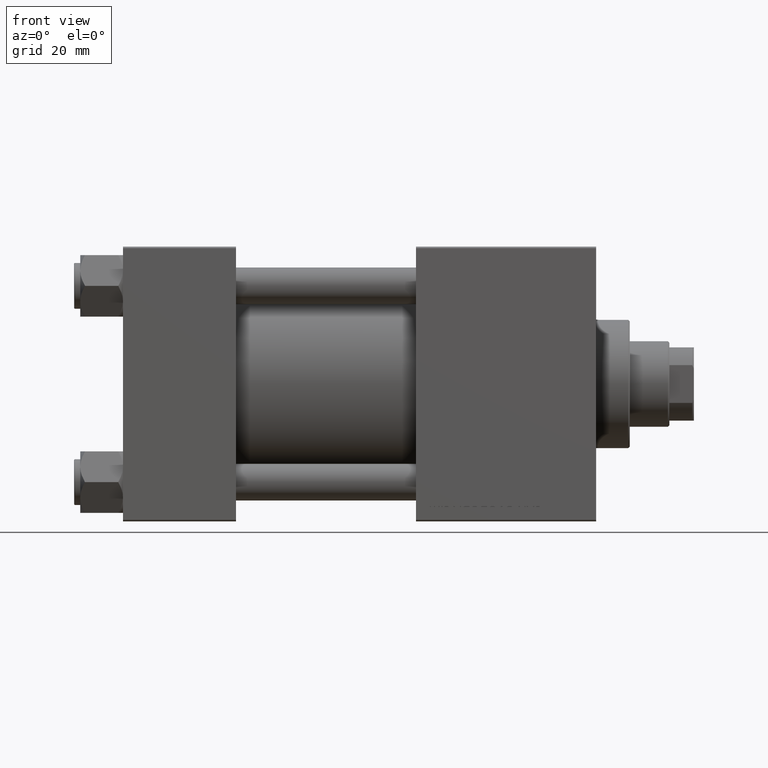
[diagram: clean part render]
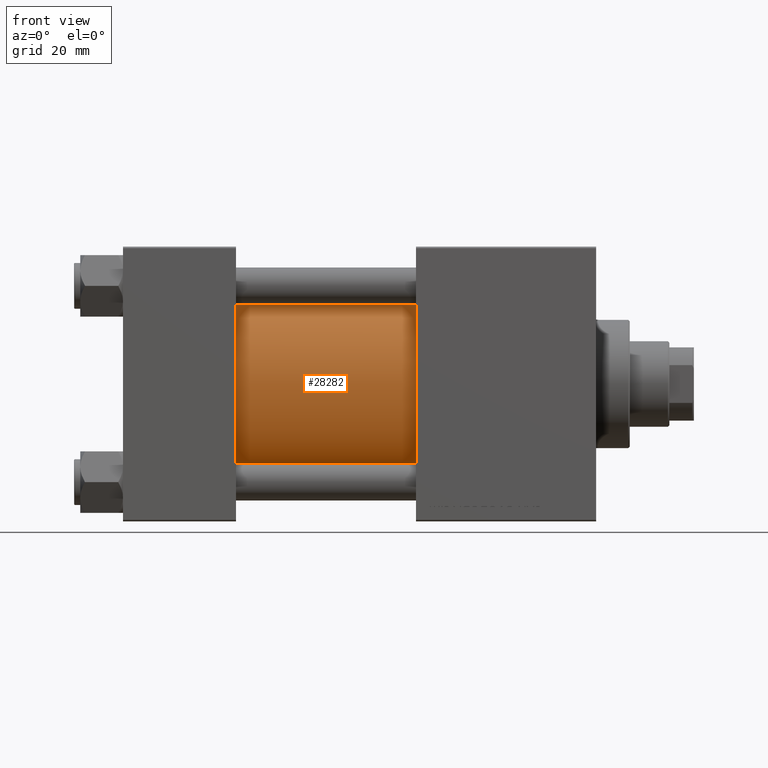
[diagram: same view with one face highlighted and labeled with its STEP entity id]
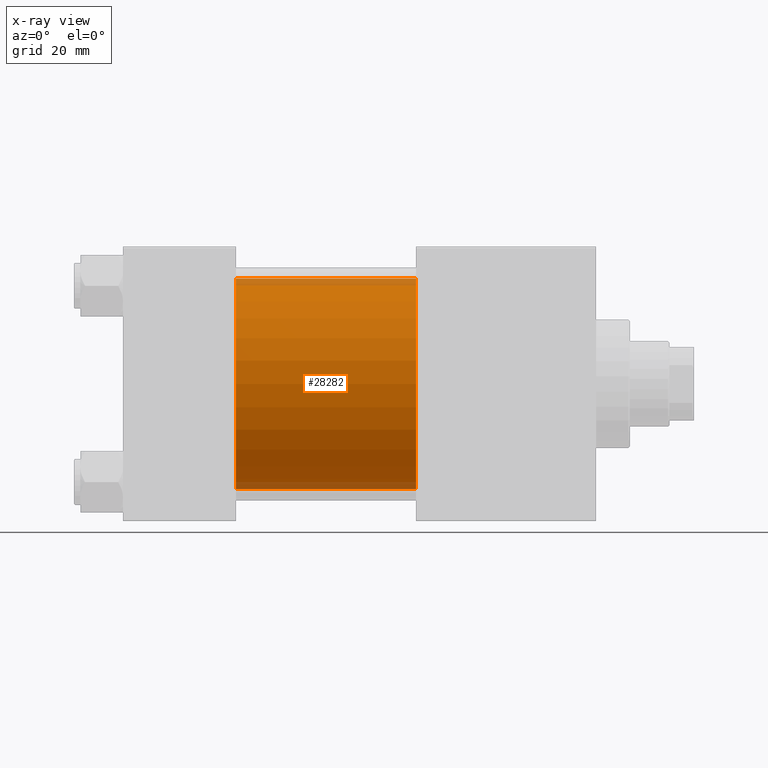
[diagram: x-ray of the same camera — body ghosted, the highlighted face saturated]
A machine part, front view. The second image highlights one B-rep face of the part: STEP entity #28282.
The next image is the same camera in x-ray: the body ghosted, the highlighted face saturated — about 7% of this face is hidden behind the body in this view.
In plain terms, the highlighted cylindrical surface (partial cylindrical patch) has radius 34.5 mm, axis along (-1, -0, -0).
Its self-contained STEP definition (entity closure, byte-faithful):
#181 = CIRCLE ( 'NONE', #28547, 34.50000000000000000 ) ;
#4275 = CARTESIAN_POINT ( 'NONE',  ( 37.00000000000000000, -2.602085213965210642E-15, 0.000000000000000000 ) ) ;
#6782 = FACE_OUTER_BOUND ( 'NONE', #41993, .T. ) ;
#7364 = ORIENTED_EDGE ( 'NONE', *, *, #33467, .T. ) ;
#7755 = AXIS2_PLACEMENT_3D ( 'NONE', #4275, #39036, #38778 ) ;
#8769 = CARTESIAN_POINT ( 'NONE',  ( 96.00000000000000000, -2.602085213965210642E-15, 0.000000000000000000 ) ) ;
#12746 = EDGE_CURVE ( 'NONE', #16697, #15611, #181, .T. ) ;
#15611 = VERTEX_POINT ( 'NONE', #27593 ) ;
#16697 = VERTEX_POINT ( 'NONE', #44147 ) ;
#17651 = EDGE_CURVE ( 'NONE', #45171, #49192, #45042, .T. ) ;
#20441 = DIRECTION ( 'NONE',  ( 0.000000000000000000, 0.000000000000000000, -1.000000000000000000 ) ) ;
#21016 = VECTOR ( 'NONE', #48830, 1000.000000000000000 ) ;
#22242 = CARTESIAN_POINT ( 'NONE',  ( 96.00000000000000000, -2.602085213965210642E-15, 0.000000000000000000 ) ) ;
#22672 = LINE ( 'NONE', #33833, #43890 ) ;
#26305 = DIRECTION ( 'NONE',  ( 0.000000000000000000, 0.000000000000000000, 1.000000000000000000 ) ) ;
#26383 = CARTESIAN_POINT ( 'NONE',  ( 37.00000000000000000, 1.622946243093158675E-15, -34.50000000000000000 ) ) ;
#26808 = DIRECTION ( 'NONE',  ( -1.000000000000000000, -0.000000000000000000, -0.000000000000000000 ) ) ;
#26976 = DIRECTION ( 'NONE',  ( -1.000000000000000000, -0.000000000000000000, -0.000000000000000000 ) ) ;
#27593 = CARTESIAN_POINT ( 'NONE',  ( 96.00000000000000000, 1.622946243093158675E-15, -34.50000000000000000 ) ) ;
#28282 = ADVANCED_FACE ( 'NONE', ( #6782 ), #33664, .T. ) ;
#28547 = AXIS2_PLACEMENT_3D ( 'NONE', #8769, #43058, #20441 ) ;
#29663 = CARTESIAN_POINT ( 'NONE',  ( 37.00000000000000000, -2.602085213965210642E-15, 34.50000000000000000 ) ) ;
#32566 = ORIENTED_EDGE ( 'NONE', *, *, #39485, .F. ) ;
#33467 = EDGE_CURVE ( 'NONE', #16697, #45171, #49822, .T. ) ;
#33664 = CYLINDRICAL_SURFACE ( 'NONE', #34722, 34.50000000000000000 ) ;
#33833 = CARTESIAN_POINT ( 'NONE',  ( 96.00000000000000000, 1.622946243093158675E-15, -34.50000000000000000 ) ) ;
#34066 = CARTESIAN_POINT ( 'NONE',  ( 96.00000000000000000, -2.602085213965210642E-15, 34.50000000000000000 ) ) ;
#34722 = AXIS2_PLACEMENT_3D ( 'NONE', #22242, #26808, #26305 ) ;
#34825 = ORIENTED_EDGE ( 'NONE', *, *, #12746, .F. ) ;
#38778 = DIRECTION ( 'NONE',  ( 0.000000000000000000, 0.000000000000000000, 1.000000000000000000 ) ) ;
#39036 = DIRECTION ( 'NONE',  ( 1.000000000000000000, -0.000000000000000000, 0.000000000000000000 ) ) ;
#39485 = EDGE_CURVE ( 'NONE', #15611, #49192, #22672, .T. ) ;
#41993 = EDGE_LOOP ( 'NONE', ( #32566, #34825, #7364, #44521 ) ) ;
#43058 = DIRECTION ( 'NONE',  ( 1.000000000000000000, 0.000000000000000000, 0.000000000000000000 ) ) ;
#43890 = VECTOR ( 'NONE', #26976, 1000.000000000000000 ) ;
#44147 = CARTESIAN_POINT ( 'NONE',  ( 96.00000000000000000, -2.602085213965210642E-15, 34.50000000000000000 ) ) ;
#44521 = ORIENTED_EDGE ( 'NONE', *, *, #17651, .T. ) ;
#45042 = CIRCLE ( 'NONE', #7755, 34.50000000000000000 ) ;
#45171 = VERTEX_POINT ( 'NONE', #29663 ) ;
#48830 = DIRECTION ( 'NONE',  ( -1.000000000000000000, -0.000000000000000000, -0.000000000000000000 ) ) ;
#49192 = VERTEX_POINT ( 'NONE', #26383 ) ;
#49822 = LINE ( 'NONE', #34066, #21016 ) ;